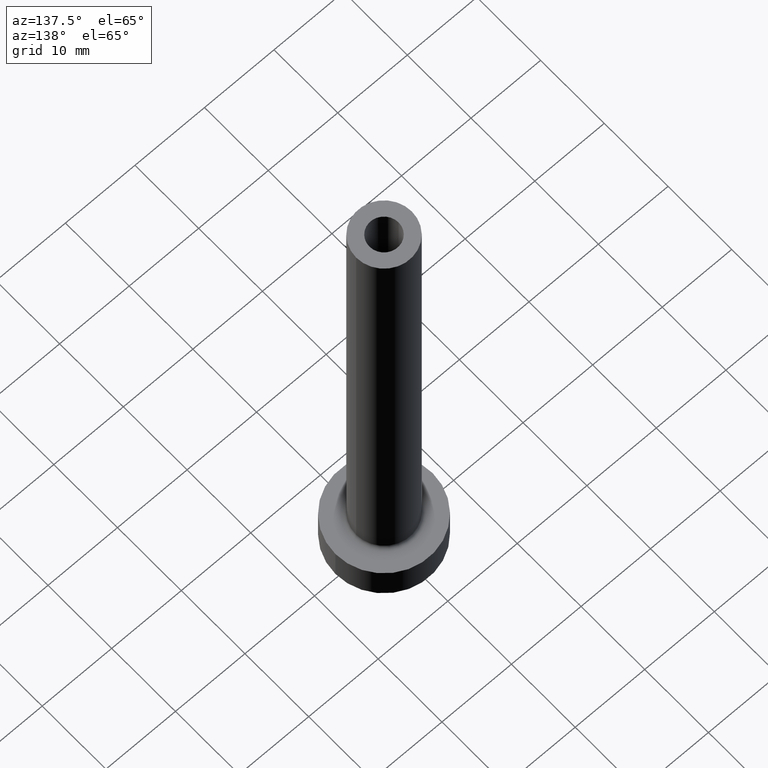
[diagram: clean part render]
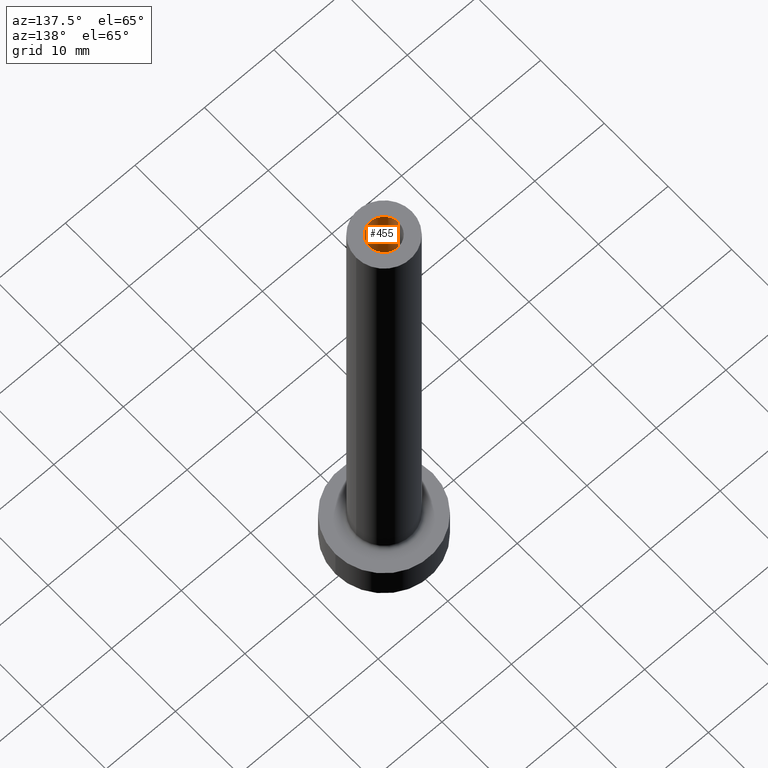
[diagram: same view with one face highlighted and labeled with its STEP entity id]
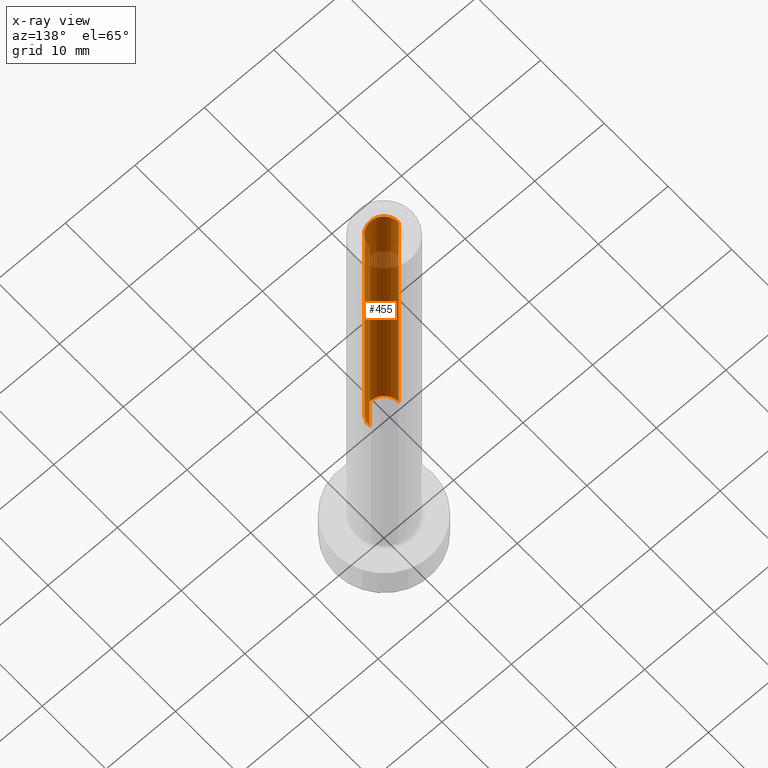
[diagram: x-ray of the same camera — body ghosted, the highlighted face saturated]
A machine part, auxiliary view. The second image highlights one B-rep face of the part: STEP entity #455.
The next image is the same camera in x-ray: the body ghosted, the highlighted face saturated — about 68% of this face is hidden behind the body in this view.
In plain terms, the highlighted cylindrical surface (edge-blend (fillet) strip) has radius 2.1 mm, axis along (0, 0, -1).
Its self-contained STEP definition (entity closure, byte-faithful):
#19 = CYLINDRICAL_SURFACE ( 'NONE', #392, 2.100000000000000089 ) ;
#29 = EDGE_CURVE ( 'NONE', #189, #305, #155, .T. ) ;
#34 = DIRECTION ( 'NONE',  ( 0.000000000000000000, 0.000000000000000000, 1.000000000000000000 ) ) ;
#37 = DIRECTION ( 'NONE',  ( 1.000000000000000000, 0.000000000000000000, 0.000000000000000000 ) ) ;
#47 = CARTESIAN_POINT ( 'NONE',  ( 2.100000000000000089, 2.571758278209441464E-16, 30.00000000000001421 ) ) ;
#49 = LINE ( 'NONE', #451, #264 ) ;
#65 = EDGE_CURVE ( 'NONE', #187, #242, #375, .T. ) ;
#90 = DIRECTION ( 'NONE',  ( 1.000000000000000000, 0.000000000000000000, 0.000000000000000000 ) ) ;
#109 = CARTESIAN_POINT ( 'NONE',  ( 0.000000000000000000, 0.000000000000000000, 30.00000000000001421 ) ) ;
#116 = EDGE_LOOP ( 'NONE', ( #324, #226, #120, #398 ) ) ;
#118 = EDGE_CURVE ( 'NONE', #187, #189, #49, .T. ) ;
#120 = ORIENTED_EDGE ( 'NONE', *, *, #29, .F. ) ;
#146 = DIRECTION ( 'NONE',  ( 0.000000000000000000, 0.000000000000000000, -1.000000000000000000 ) ) ;
#150 = CARTESIAN_POINT ( 'NONE',  ( -2.100000000000000089, 0.000000000000000000, 75.00000000000001421 ) ) ;
#155 = CIRCLE ( 'NONE', #419, 2.100000000000000089 ) ;
#156 = LINE ( 'NONE', #452, #321 ) ;
#178 = AXIS2_PLACEMENT_3D ( 'NONE', #429, #34, #90 ) ;
#179 = CARTESIAN_POINT ( 'NONE',  ( 2.100000000000000089, 2.571758278209441464E-16, 75.00000000000001421 ) ) ;
#187 = VERTEX_POINT ( 'NONE', #150 ) ;
#189 = VERTEX_POINT ( 'NONE', #218 ) ;
#196 = DIRECTION ( 'NONE',  ( 0.000000000000000000, 0.000000000000000000, -1.000000000000000000 ) ) ;
#218 = CARTESIAN_POINT ( 'NONE',  ( -2.100000000000000089, 0.000000000000000000, 30.00000000000001421 ) ) ;
#226 = ORIENTED_EDGE ( 'NONE', *, *, #377, .T. ) ;
#242 = VERTEX_POINT ( 'NONE', #179 ) ;
#248 = CARTESIAN_POINT ( 'NONE',  ( 0.000000000000000000, 0.000000000000000000, 75.00000000000001421 ) ) ;
#264 = VECTOR ( 'NONE', #196, 1000.000000000000000 ) ;
#273 = DIRECTION ( 'NONE',  ( 0.000000000000000000, 0.000000000000000000, -1.000000000000000000 ) ) ;
#305 = VERTEX_POINT ( 'NONE', #47 ) ;
#315 = FACE_OUTER_BOUND ( 'NONE', #116, .T. ) ;
#321 = VECTOR ( 'NONE', #146, 1000.000000000000000 ) ;
#324 = ORIENTED_EDGE ( 'NONE', *, *, #65, .T. ) ;
#348 = DIRECTION ( 'NONE',  ( -1.000000000000000000, 0.000000000000000000, 0.000000000000000000 ) ) ;
#375 = CIRCLE ( 'NONE', #178, 2.100000000000000089 ) ;
#377 = EDGE_CURVE ( 'NONE', #242, #305, #156, .T. ) ;
#392 = AXIS2_PLACEMENT_3D ( 'NONE', #248, #273, #348 ) ;
#398 = ORIENTED_EDGE ( 'NONE', *, *, #118, .F. ) ;
#403 = DIRECTION ( 'NONE',  ( 0.000000000000000000, 0.000000000000000000, 1.000000000000000000 ) ) ;
#419 = AXIS2_PLACEMENT_3D ( 'NONE', #109, #403, #37 ) ;
#429 = CARTESIAN_POINT ( 'NONE',  ( 0.000000000000000000, 0.000000000000000000, 75.00000000000001421 ) ) ;
#451 = CARTESIAN_POINT ( 'NONE',  ( -2.100000000000000089, 0.000000000000000000, 75.00000000000001421 ) ) ;
#452 = CARTESIAN_POINT ( 'NONE',  ( 2.100000000000000089, 2.571758278209441464E-16, 75.00000000000001421 ) ) ;
#455 = ADVANCED_FACE ( 'NONE', ( #315 ), #19, .F. ) ;